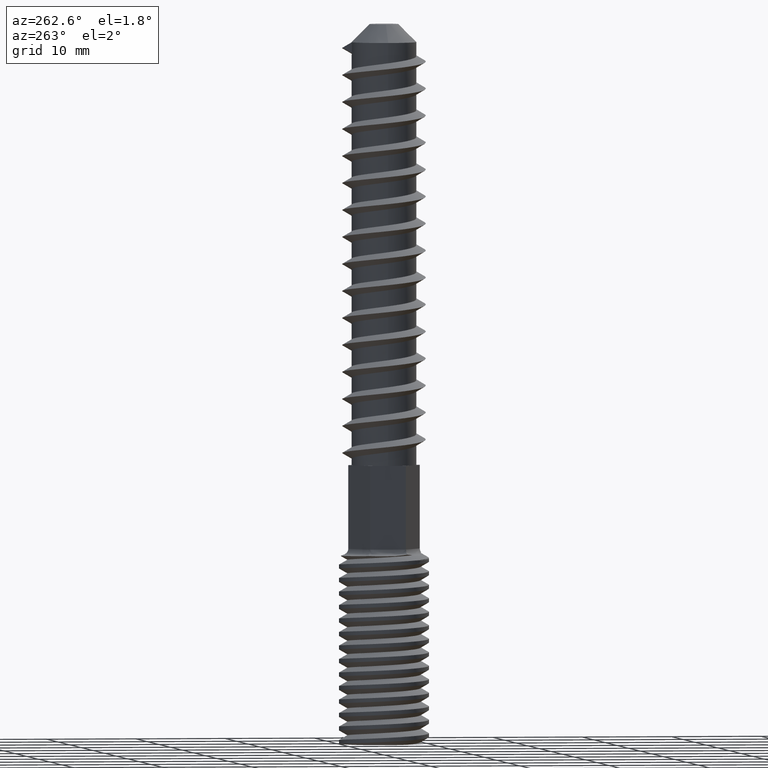
[diagram: clean part render]
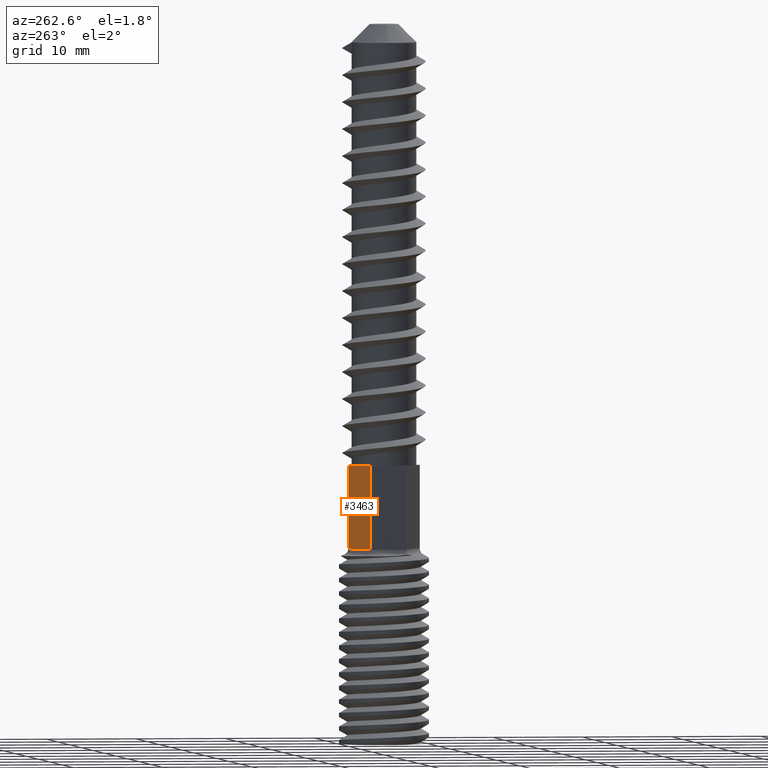
[diagram: same view with one face highlighted and labeled with its STEP entity id]
A machine part, auxiliary view. The second image highlights one B-rep face of the part: STEP entity #3463.
In plain terms, the highlighted planar face has unit normal (0.5, -0.866, 0).
Its self-contained STEP definition (entity closure, byte-faithful):
#186 = LINE ( 'NONE', #463, #16208 ) ;
#463 = CARTESIAN_POINT ( 'NONE',  ( -3.464101615137753500, 2.000000000000000900, -47.50000000000000000 ) ) ;
#755 = VERTEX_POINT ( 'NONE', #5689 ) ;
#1338 = CARTESIAN_POINT ( 'NONE',  ( -1.154700538379300100, 3.333333333333305100, -46.79289321881346100 ) ) ;
#2425 = EDGE_CURVE ( 'NONE', #5162, #755, #4945, .T. ) ;
#2495 = CARTESIAN_POINT ( 'NONE',  ( -3.464101615137753500, 2.000000000000000900, -37.50000000000000000 ) ) ;
#2909 = CARTESIAN_POINT ( 'NONE',  ( -3.464101615137753500, 2.000000000000000900, -46.79289321881345400 ) ) ;
#3435 = CARTESIAN_POINT ( 'NONE',  ( -3.464101615137753500, 2.000000000000000900, -47.50000000000000000 ) ) ;
#3463 = ADVANCED_FACE ( 'NONE', ( #6464 ), #8415, .F. ) ;
#4076 = CARTESIAN_POINT ( 'NONE',  ( -3.464101615137753500, 2.000000000000000900, -37.50000000000000000 ) ) ;
#4130 = VECTOR ( 'NONE', #5755, 1000.000000000000100 ) ;
#4590 = AXIS2_PLACEMENT_3D ( 'NONE', #3435, #4992, #15817 ) ;
#4945 = B_SPLINE_CURVE_WITH_KNOTS ( 'NONE', 3,
 ( #10657, #1338, #12221, #2909 ),
 .UNSPECIFIED., .F., .F.,
 ( 4, 4 ),
 ( 0.0000000000000000000, 1.000000000000000000 ),
 .UNSPECIFIED. ) ;
#4992 = DIRECTION ( 'NONE',  ( 0.4999999999999998900, -0.8660254037844387100, 0.0000000000000000000 ) ) ;
#5019 = VECTOR ( 'NONE', #19643, 1000.000000000000100 ) ;
#5093 = ORIENTED_EDGE ( 'NONE', *, *, #15648, .T. ) ;
#5162 = VERTEX_POINT ( 'NONE', #15988 ) ;
#5540 = CARTESIAN_POINT ( 'NONE',  ( -0.8835226701450208400, 3.489897948556635500, -37.50000000000000000 ) ) ;
#5689 = CARTESIAN_POINT ( 'NONE',  ( -3.464101615137753500, 2.000000000000000900, -46.79289321881345400 ) ) ;
#5755 = DIRECTION ( 'NONE',  ( 0.8660254037844387100, 0.4999999999999998300, 0.0000000000000000000 ) ) ;
#5863 = EDGE_LOOP ( 'NONE', ( #15237, #12111, #9255, #5093, #13172, #16425 ) ) ;
#5917 = LINE ( 'NONE', #11635, #18776 ) ;
#6464 = FACE_OUTER_BOUND ( 'NONE', #5863, .T. ) ;
#6796 = LINE ( 'NONE', #4076, #10408 ) ;
#7811 = EDGE_CURVE ( 'NONE', #9078, #11718, #6796, .T. ) ;
#8354 = EDGE_CURVE ( 'NONE', #755, #14325, #186, .T. ) ;
#8415 = PLANE ( 'NONE',  #4590 ) ;
#9078 = VERTEX_POINT ( 'NONE', #19373 ) ;
#9255 = ORIENTED_EDGE ( 'NONE', *, *, #8354, .T. ) ;
#10373 = CARTESIAN_POINT ( 'NONE',  ( -3.464101615137753500, 2.000000000000000900, -37.50000000000000000 ) ) ;
#10408 = VECTOR ( 'NONE', #16450, 1000.000000000000100 ) ;
#10657 = CARTESIAN_POINT ( 'NONE',  ( 9.498221849098337100E-016, 4.000000000000000000, -46.79289321881345400 ) ) ;
#11635 = CARTESIAN_POINT ( 'NONE',  ( 9.498221849098337100E-016, 4.000000000000000000, -47.50000000000000000 ) ) ;
#11718 = VERTEX_POINT ( 'NONE', #5540 ) ;
#11891 = LINE ( 'NONE', #15035, #4130 ) ;
#12060 = EDGE_CURVE ( 'NONE', #5162, #12279, #5917, .T. ) ;
#12111 = ORIENTED_EDGE ( 'NONE', *, *, #2425, .T. ) ;
#12221 = CARTESIAN_POINT ( 'NONE',  ( -2.309401076758505100, 2.666666666666665200, -46.79289321881346100 ) ) ;
#12279 = VERTEX_POINT ( 'NONE', #20010 ) ;
#12903 = DIRECTION ( 'NONE',  ( -0.0000000000000000000, -0.0000000000000000000, 1.000000000000000000 ) ) ;
#13172 = ORIENTED_EDGE ( 'NONE', *, *, #7811, .T. ) ;
#13720 = LINE ( 'NONE', #10373, #5019 ) ;
#14325 = VERTEX_POINT ( 'NONE', #2495 ) ;
#15035 = CARTESIAN_POINT ( 'NONE',  ( -3.464101615137753500, 2.000000000000000900, -37.50000000000000000 ) ) ;
#15237 = ORIENTED_EDGE ( 'NONE', *, *, #12060, .F. ) ;
#15648 = EDGE_CURVE ( 'NONE', #14325, #9078, #11891, .T. ) ;
#15817 = DIRECTION ( 'NONE',  ( 0.8660254037844387100, 0.4999999999999998900, 0.0000000000000000000 ) ) ;
#15988 = CARTESIAN_POINT ( 'NONE',  ( 9.498221849098337100E-016, 4.000000000000000000, -46.79289321881345400 ) ) ;
#16208 = VECTOR ( 'NONE', #12903, 1000.000000000000000 ) ;
#16425 = ORIENTED_EDGE ( 'NONE', *, *, #19293, .T. ) ;
#16450 = DIRECTION ( 'NONE',  ( 0.8660254037844387100, 0.4999999999999998300, 0.0000000000000000000 ) ) ;
#17892 = DIRECTION ( 'NONE',  ( -0.0000000000000000000, -0.0000000000000000000, 1.000000000000000000 ) ) ;
#18776 = VECTOR ( 'NONE', #17892, 1000.000000000000000 ) ;
#19293 = EDGE_CURVE ( 'NONE', #11718, #12279, #13720, .T. ) ;
#19373 = CARTESIAN_POINT ( 'NONE',  ( -2.580578944992733000, 2.510102051443366300, -37.50000000000000000 ) ) ;
#19643 = DIRECTION ( 'NONE',  ( 0.8660254037844387100, 0.4999999999999998300, 0.0000000000000000000 ) ) ;
#20010 = CARTESIAN_POINT ( 'NONE',  ( 9.498221849098337100E-016, 4.000000000000000000, -37.50000000000000000 ) ) ;